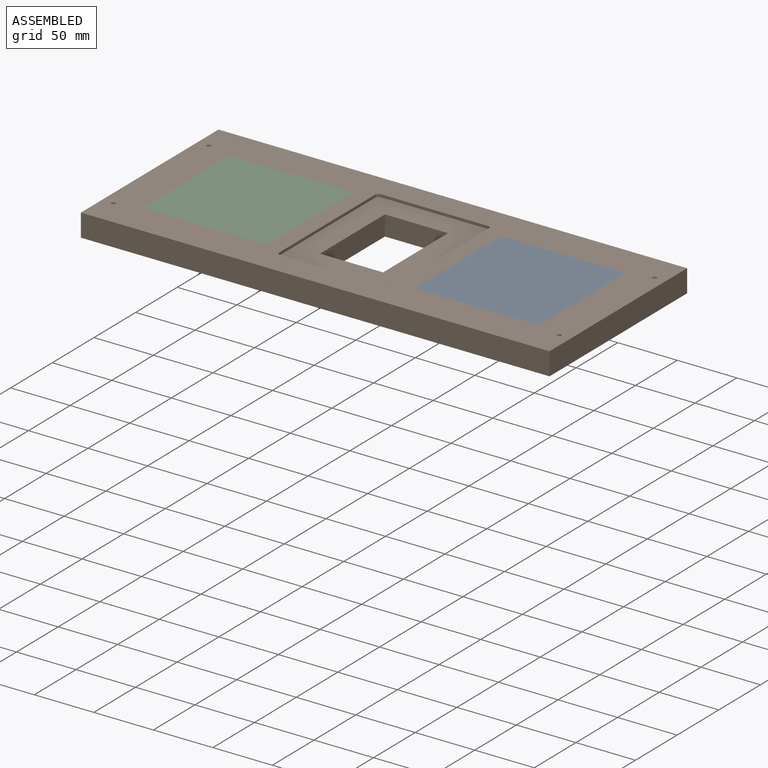
[diagram: assembled view]
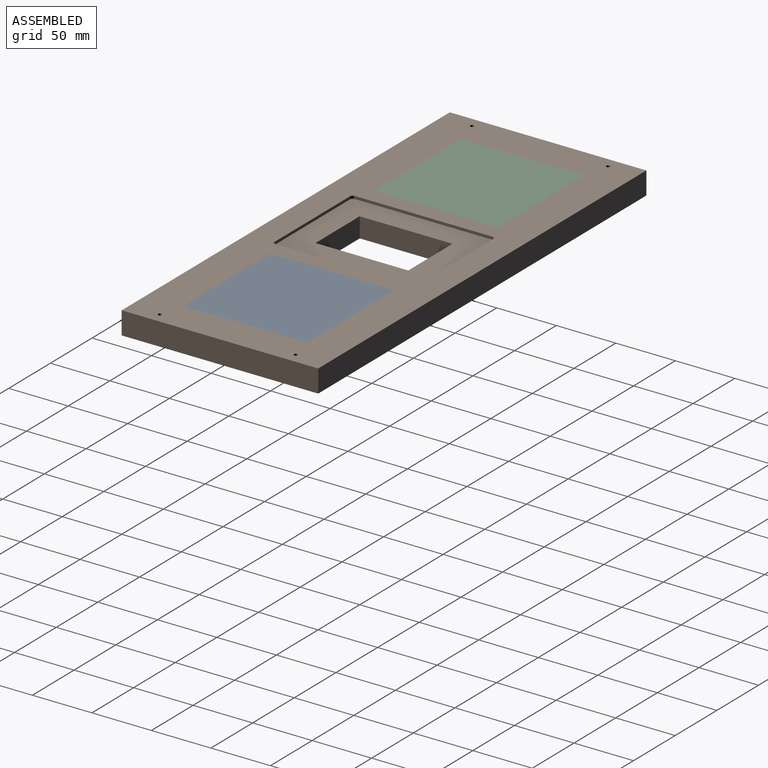
[diagram: assembled view, second angle]
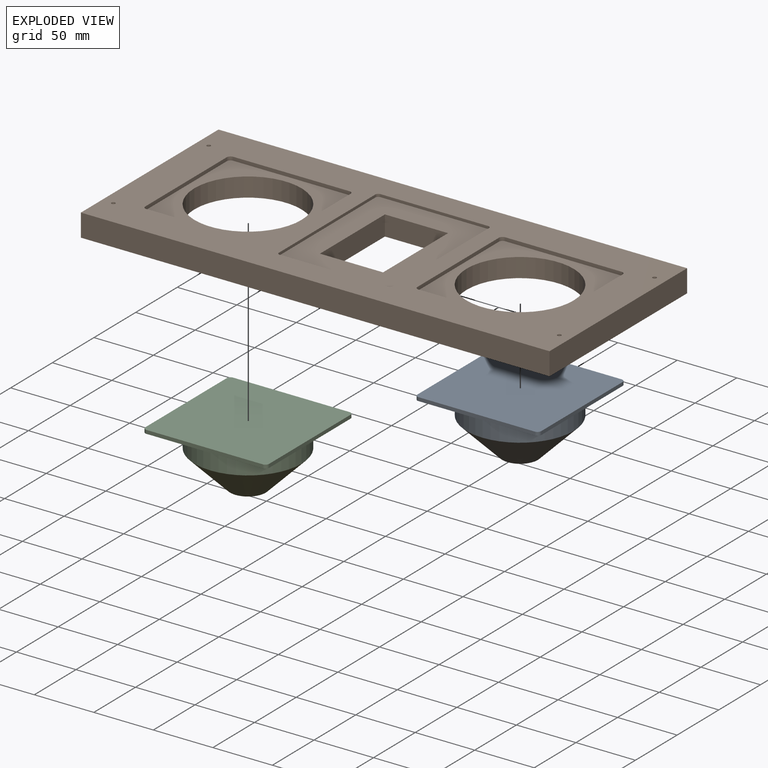
[diagram: exploded view]
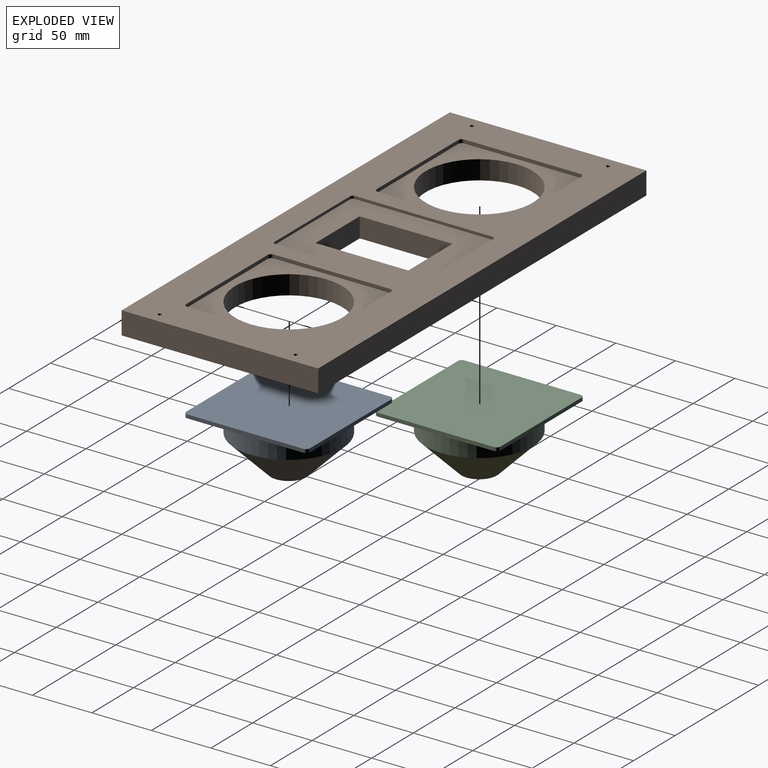
[diagram: exploded view, second angle]
ASSEMBLY  parts=3 mates=2
PART A: 13 faces, bbox 104x50.4x104 mm
  f0: plane 97.65x3mm, normal (1,0,0), area 292.9mm2, adj f4,f5,f6,f9
  f1: plane 97.65x3mm, normal (0,0,1), area 292.9mm2, adj f4,f5,f6,f7
  f2: plane 97.65x3mm, normal (-1,0,0), area 292.9mm2, adj f4,f5,f7,f8
  f3: plane 97.65x3mm, normal (0,0,-1), area 292.9mm2, adj f4,f5,f8,f9
  f4: plane 104x104mm, normal (0,-1,0), area 10807.3mm2, adj f0,f1,f2,f3,f6,f7,f8,f9
  f5: plane 104x104mm, normal (0,1,0), area 4445.6mm2, adj f0,f1,f2,f3,f6,f7,f8,f9
  f6: cylinder r=3.17mm len=3.18mm, axis (0,-1,0), area 15mm2, adj f0,f1,f4,f5
  f7: cylinder r=3.17mm len=3.18mm, axis (0,1,0), area 15mm2, adj f1,f2,f4,f5
  f8: cylinder r=3.17mm len=3.18mm, axis (0,-1,0), area 15mm2, adj f2,f3,f4,f5
  f9: cylinder r=3.17mm len=3.18mm, axis (0,1,0), area 15mm2, adj f0,f3,f4,f5
  f10: cylinder r=45mm len=90mm, axis (0,-1,0), area 4919.7mm2, adj f5,f12
  f11: plane 30x30mm, normal (0,1,0), area 706.9mm2, adj f12
  f12: cone r=15mm half-angle=45deg, axis (0,-1,0), area 7997.2mm2, adj f10,f11
PART B: 43 faces, bbox 393.7x165.1x19.1 mm
  f0: plane 120.65x95.5mm, normal (0,0,1), area 7377.5mm2, adj f27,f28,f29,f30,f31,f32,f33,f34
  f1: plane 393.7x165.1mm, normal (0,0,-1), area 48105.2mm2, adj f3,f4,f5,f6,f16,f26,f35,f36
  f2: plane 393.7x165.1mm, normal (0,0,1), area 31836.5mm2, adj f3,f4,f5,f6,f7,f8,f9,f10
  f3: plane 165.1x19.05mm, normal (1,0,0), area 3145.2mm2, adj f1,f2,f4,f6
  f4: plane 393.7x19.05mm, normal (0,1,0), area 7500mm2, adj f1,f2,f3,f5
  f5: plane 165.1x19.05mm, normal (-1,0,0), area 3145.2mm2, adj f1,f2,f4,f6
  f6: plane 393.7x19.05mm, normal (0,-1,0), area 7500mm2, adj f1,f2,f3,f5
  f7: plane 97.65x3mm, normal (-1,0,0), area 293mm2, adj f2,f8,f14,f15
  f8: cylinder r=3.17mm len=3.18mm, axis (0,0,1), area 15mm2, adj f2,f7,f9,f15
  f9: plane 97.65x3mm, normal (0,-1,0), area 293mm2, adj f2,f8,f10,f15
  f10: cylinder r=3.17mm len=3.18mm, axis (0,0,1), area 15mm2, adj f2,f9,f11,f15
  f11: plane 97.65x3mm, normal (1,0,0), area 293mm2, adj f2,f10,f12,f15
  f12: cylinder r=3.17mm len=3.18mm, axis (0,0,1), area 15mm2, adj f2,f11,f13,f15
  f13: plane 97.65x3mm, normal (0,1,0), area 293mm2, adj f2,f12,f14,f15
  f14: cylinder r=3.17mm len=3.18mm, axis (0,0,1), area 15mm2, adj f2,f7,f13,f15
  f15: plane 104x104mm, normal (0,0,1), area 4445.6mm2, adj f7,f8,f9,f10,f11,f12,f13,f14
  f16: cylinder r=45mm len=90mm, axis (0,0,1), area 4538mm2, adj f1,f15
  f17: plane 97.65x3mm, normal (-1,0,0), area 293mm2, adj f2,f18,f24,f25
  f18: cylinder r=3.17mm len=3.18mm, axis (0,0,1), area 15mm2, adj f2,f17,f19,f25
  f19: plane 97.65x3mm, normal (0,-1,0), area 293mm2, adj f2,f18,f20,f25
  f20: cylinder r=3.17mm len=3.18mm, axis (0,0,1), area 15mm2, adj f2,f19,f21,f25
  f21: plane 97.65x3mm, normal (1,0,0), area 293mm2, adj f2,f20,f22,f25
  f22: cylinder r=3.17mm len=3.18mm, axis (0,0,1), area 15mm2, adj f2,f21,f23,f25
  f23: plane 97.65x3mm, normal (0,1,0), area 293mm2, adj f2,f22,f24,f25
  f24: cylinder r=3.17mm len=3.18mm, axis (0,0,1), area 15mm2, adj f2,f17,f23,f25
  f25: plane 104x104mm, normal (0,0,1), area 4445.6mm2, adj f17,f18,f19,f20,f21,f22,f23,f24
  f26: cylinder r=45mm len=90mm, axis (0,0,1), area 4538mm2, adj f1,f25
  f27: plane 115.57x2.29mm, normal (-1,0,0), area 264.2mm2, adj f0,f2,f28,f34
  f28: cylinder r=2.54mm len=2.54mm, axis (0,0,1), area 9.1mm2, adj f0,f2,f27,f29
  f29: plane 90.42x2.29mm, normal (0,-1,0), area 206.7mm2, adj f0,f2,f28,f30
  f30: cylinder r=2.54mm len=2.54mm, axis (0,0,1), area 9.1mm2, adj f0,f2,f29,f31
  f31: plane 115.57x2.29mm, normal (1,0,0), area 264.2mm2, adj f0,f2,f30,f32
  f32: cylinder r=2.54mm len=2.54mm, axis (0,0,1), area 9.1mm2, adj f0,f2,f31,f33
  f33: plane 90.42x2.29mm, normal (0,1,0), area 206.7mm2, adj f0,f2,f32,f34
  f34: cylinder r=2.54mm len=2.54mm, axis (0,0,1), area 9.1mm2, adj f0,f2,f27,f33
  f35: plane 77.98x16.76mm, normal (-1,0,0), area 1307.2mm2, adj f0,f1,f36,f38
  f36: plane 53.09x16.76mm, normal (0,-1,0), area 889.9mm2, adj f0,f1,f35,f37
  f37: plane 77.98x16.76mm, normal (1,0,0), area 1307.2mm2, adj f0,f1,f36,f38
  f38: plane 53.09x16.76mm, normal (0,1,0), area 889.9mm2, adj f0,f1,f35,f37
  f39: cylinder r=1.59mm len=19.05mm, axis (0,0,1), area 190mm2, adj f1,f2
  f40: cylinder r=1.59mm len=19.05mm, axis (0,0,1), area 190mm2, adj f1,f2
  f41: cylinder r=1.59mm len=19.05mm, axis (0,0,1), area 190mm2, adj f1,f2
  f42: cylinder r=1.59mm len=19.05mm, axis (0,0,1), area 190mm2, adj f1,f2
PART C: same geometry as A
PLACE A rot(axis=(-1,0,0),90deg) t=(113.28,-0.35,7.24)mm
PLACE B t=(-1.02,-0.35,-8.81)mm
PLACE C rot(axis=(-1,0,0),90deg) t=(-115.32,-0.35,7.24)mm
MATE fastened C.f7 <-> B.f10  axis (0,0,-1) through (-164.14,48.47,7.24)mm
MATE fastened A.f6 <-> B.f18  axis (0,0,-1) through (162.11,48.47,7.24)mm
